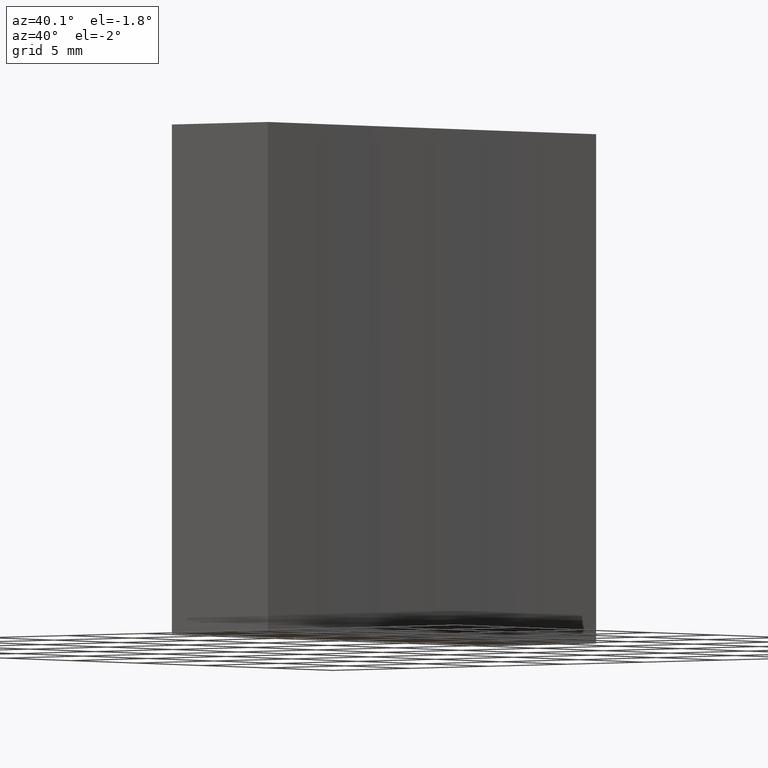
[diagram: clean part render]
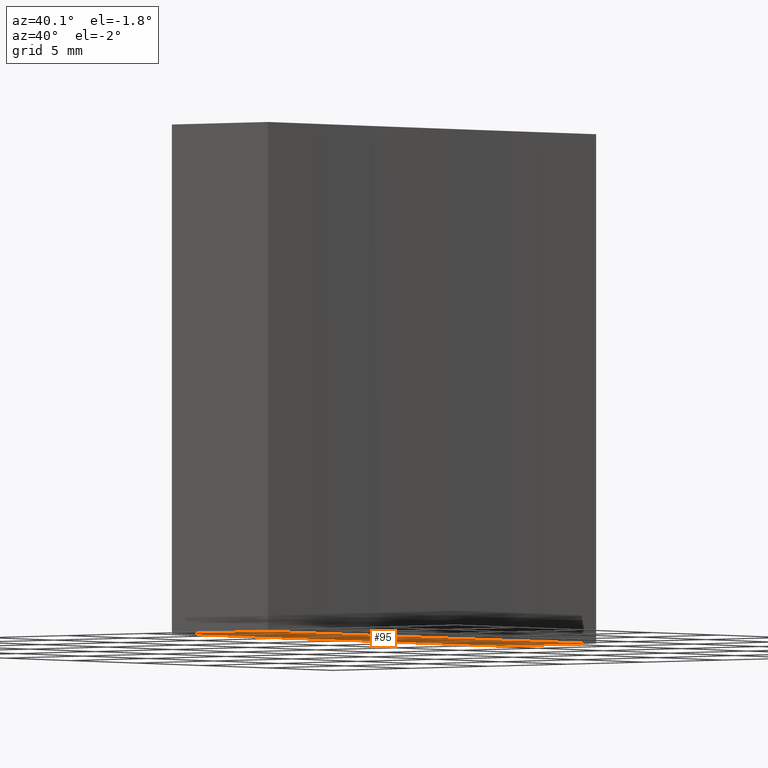
[diagram: same view with one face highlighted and labeled with its STEP entity id]
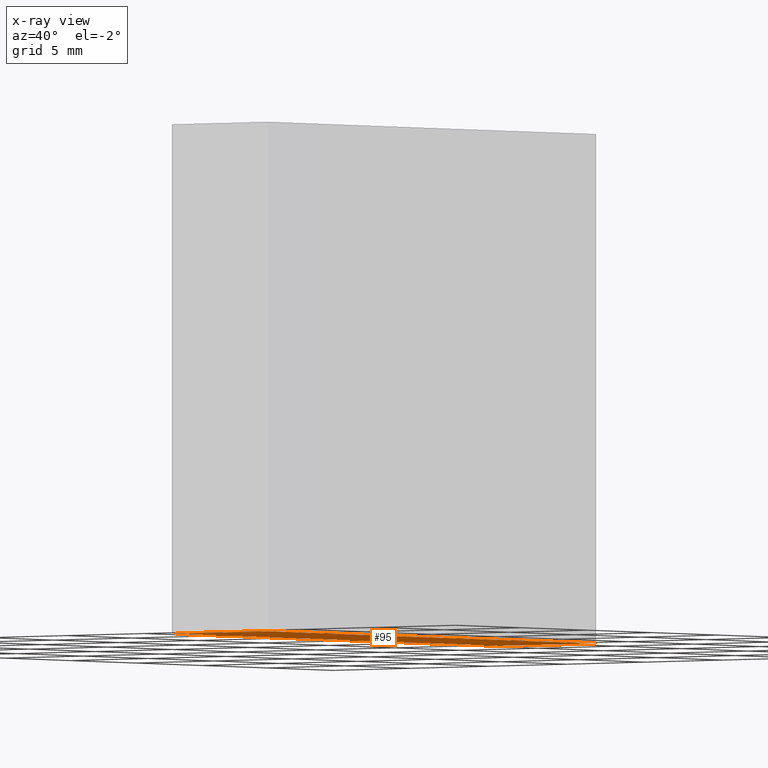
[diagram: x-ray of the same camera — body ghosted, the highlighted face saturated]
A machine part, auxiliary view. The second image highlights one B-rep face of the part: STEP entity #95.
The next image is the same camera in x-ray: the body ghosted, the highlighted face saturated — about 0% of this face is hidden behind the body in this view.
In plain terms, the highlighted planar face has unit normal (0, 0, 1).
Its self-contained STEP definition (entity closure, byte-faithful):
#5 = VECTOR ( 'NONE', #186, 1000.000000000000000 ) ;
#7 = EDGE_CURVE ( 'NONE', #27, #182, #105, .T. ) ;
#14 = EDGE_CURVE ( 'NONE', #182, #213, #148, .T. ) ;
#24 = VERTEX_POINT ( 'NONE', #170 ) ;
#27 = VERTEX_POINT ( 'NONE', #104 ) ;
#34 = DIRECTION ( 'NONE',  ( -1.000000000000000000, -0.0000000000000000000, -0.0000000000000000000 ) ) ;
#40 = CARTESIAN_POINT ( 'NONE',  ( 284.7071356312820900, 66.85792926776707600, 0.0000000000000000000 ) ) ;
#45 = CARTESIAN_POINT ( 'NONE',  ( 290.8634100413992800, 54.35792926776753800, 0.0000000000000000000 ) ) ;
#54 = ORIENTED_EDGE ( 'NONE', *, *, #14, .F. ) ;
#55 = CARTESIAN_POINT ( 'NONE',  ( 290.8634100413992800, 54.35792926776736100, 0.0000000000000000000 ) ) ;
#58 = LINE ( 'NONE', #40, #159 ) ;
#63 = ORIENTED_EDGE ( 'NONE', *, *, #98, .F. ) ;
#68 = FACE_OUTER_BOUND ( 'NONE', #99, .T. ) ;
#72 = VECTOR ( 'NONE', #34, 1000.000000000000000 ) ;
#76 = EDGE_CURVE ( 'NONE', #24, #156, #101, .T. ) ;
#77 = DIRECTION ( 'NONE',  ( -0.0000000000000000000, -1.000000000000000000, -0.0000000000000000000 ) ) ;
#78 = ORIENTED_EDGE ( 'NONE', *, *, #197, .F. ) ;
#88 = DIRECTION ( 'NONE',  ( -0.0000000000000000000, -0.0000000000000000000, -1.000000000000000000 ) ) ;
#93 = CIRCLE ( 'NONE', #187, 500.0000000000001100 ) ;
#95 = ADVANCED_FACE ( 'NONE', ( #68 ), #143, .F. ) ;
#98 = EDGE_CURVE ( 'NONE', #156, #27, #58, .T. ) ;
#99 = EDGE_LOOP ( 'NONE', ( #150, #63, #128, #78, #54 ) ) ;
#101 = LINE ( 'NONE', #190, #72 ) ;
#104 = CARTESIAN_POINT ( 'NONE',  ( 284.7071356312820900, 54.35792926776707600, 0.0000000000000000000 ) ) ;
#105 = LINE ( 'NONE', #55, #5 ) ;
#126 = AXIS2_PLACEMENT_3D ( 'NONE', #174, #232, #157 ) ;
#128 = ORIENTED_EDGE ( 'NONE', *, *, #76, .F. ) ;
#143 = PLANE ( 'NONE',  #126 ) ;
#147 = DIRECTION ( 'NONE',  ( -0.0000000000000000000, -0.0000000000000000000, -1.000000000000000000 ) ) ;
#148 = CIRCLE ( 'NONE', #151, 500.0000000000001100 ) ;
#150 = ORIENTED_EDGE ( 'NONE', *, *, #7, .F. ) ;
#151 = AXIS2_PLACEMENT_3D ( 'NONE', #209, #88, #205 ) ;
#156 = VERTEX_POINT ( 'NONE', #193 ) ;
#157 = DIRECTION ( 'NONE',  ( 1.000000000000000000, 0.0000000000000000000, -0.0000000000000000000 ) ) ;
#159 = VECTOR ( 'NONE', #77, 1000.000000000000000 ) ;
#165 = CARTESIAN_POINT ( 'NONE',  ( 790.7071356197045600, 66.85792926776608200, 0.0000000000000000000 ) ) ;
#170 = CARTESIAN_POINT ( 'NONE',  ( 290.8634100413993300, 79.35792926776707600, 0.0000000000000000000 ) ) ;
#174 = CARTESIAN_POINT ( 'NONE',  ( 790.7071356197045600, 66.85792926776608200, 0.0000000000000000000 ) ) ;
#178 = DIRECTION ( 'NONE',  ( 1.000000000000000000, 0.0000000000000000000, 0.0000000000000000000 ) ) ;
#182 = VERTEX_POINT ( 'NONE', #45 ) ;
#186 = DIRECTION ( 'NONE',  ( 1.000000000000000000, 4.621214570823220700E-014, -0.0000000000000000000 ) ) ;
#187 = AXIS2_PLACEMENT_3D ( 'NONE', #165, #147, #178 ) ;
#190 = CARTESIAN_POINT ( 'NONE',  ( 284.7071356312820900, 79.35792926776707600, 0.0000000000000000000 ) ) ;
#193 = CARTESIAN_POINT ( 'NONE',  ( 284.7071356312820900, 79.35792926776707600, 0.0000000000000000000 ) ) ;
#197 = EDGE_CURVE ( 'NONE', #213, #24, #93, .T. ) ;
#205 = DIRECTION ( 'NONE',  ( 1.000000000000000000, 0.0000000000000000000, 0.0000000000000000000 ) ) ;
#209 = CARTESIAN_POINT ( 'NONE',  ( 790.7071356197045600, 66.85792926776608200, 0.0000000000000000000 ) ) ;
#213 = VERTEX_POINT ( 'NONE', #214 ) ;
#214 = CARTESIAN_POINT ( 'NONE',  ( 290.7071356197043900, 66.85792926776608200, 0.0000000000000000000 ) ) ;
#232 = DIRECTION ( 'NONE',  ( 0.0000000000000000000, 0.0000000000000000000, 1.000000000000000000 ) ) ;